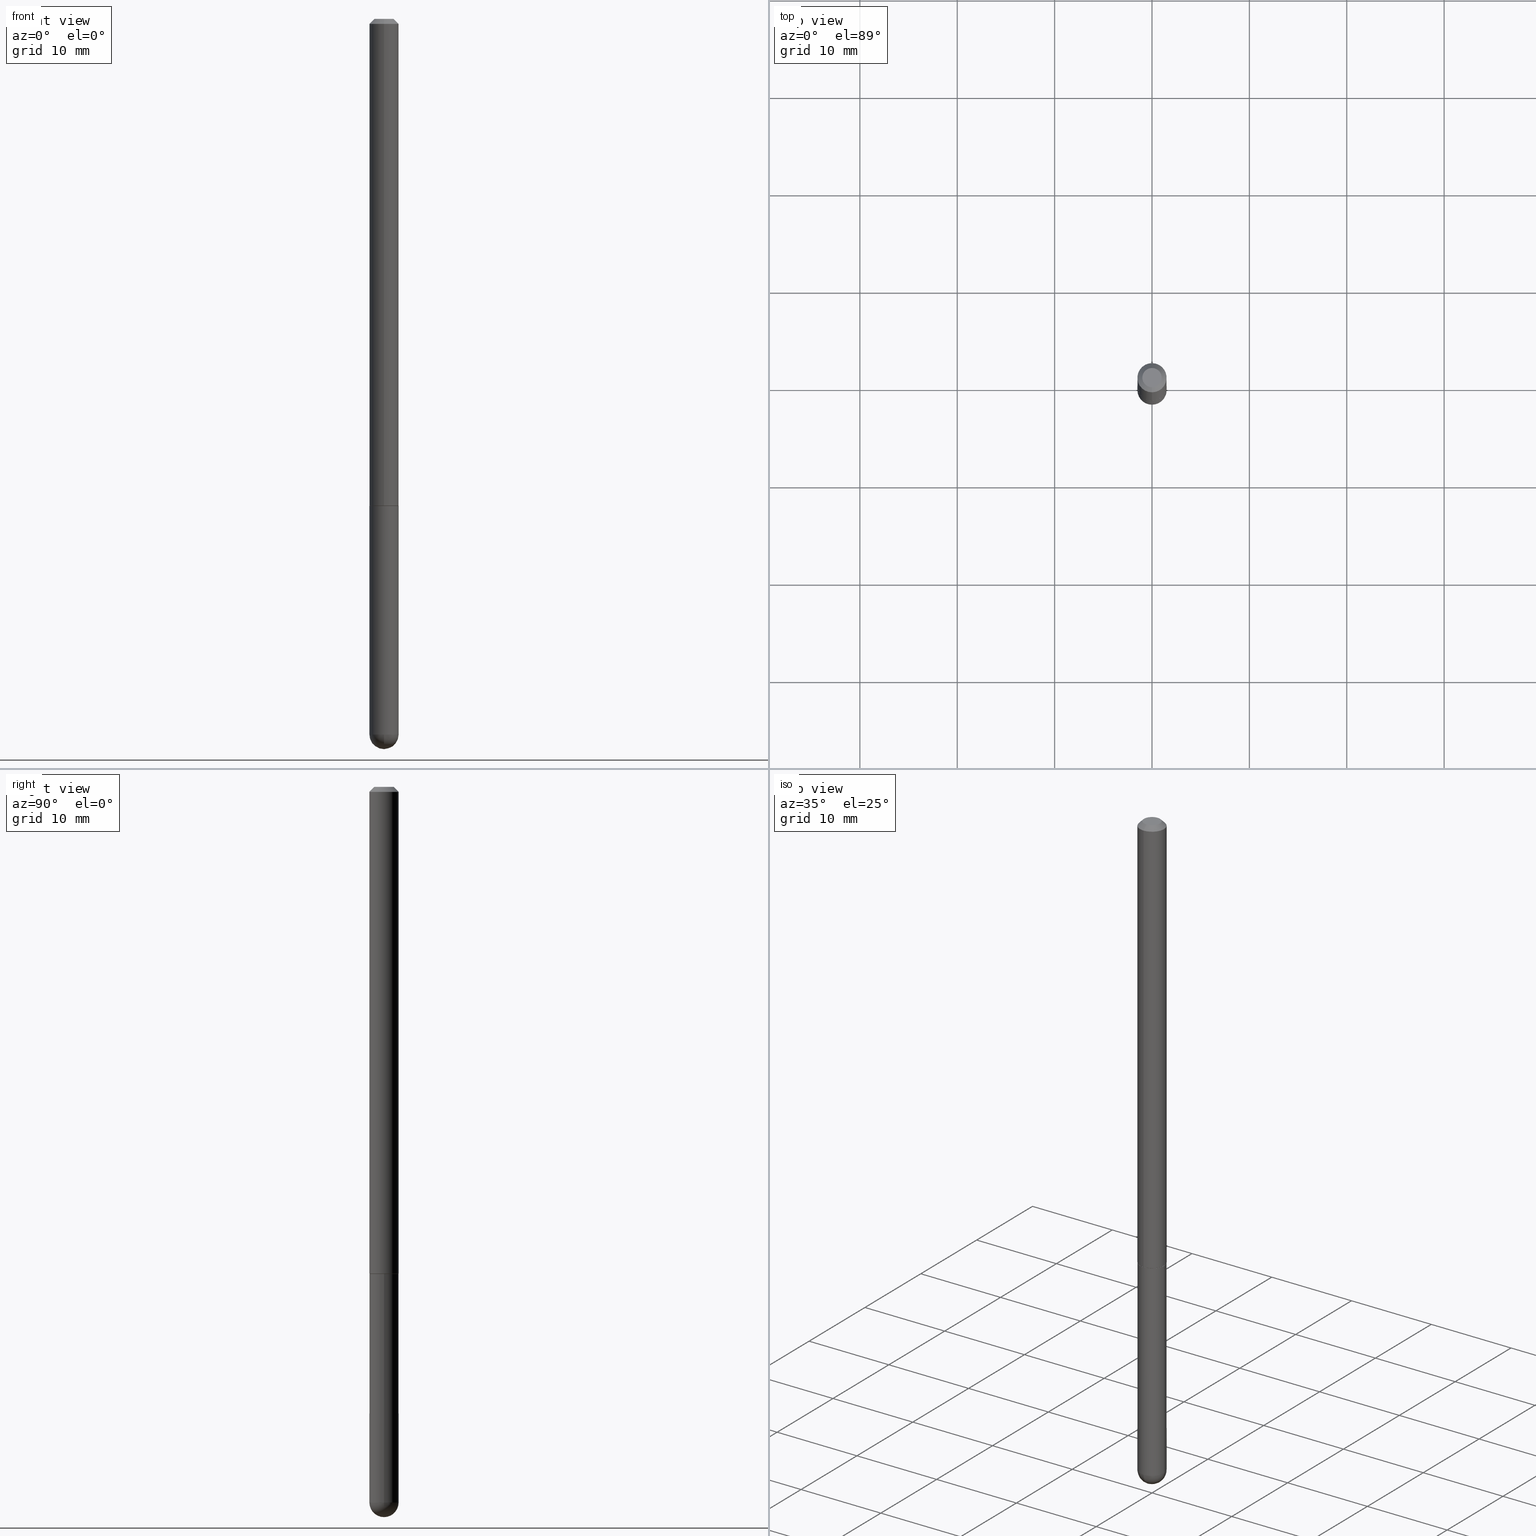
[diagram: canonical four-view strip — front | top / right | iso, engineering-drawing reading convention]
A machine part, canonical four-view strip (front | top / right | iso — engineering-drawing reading convention). The complete STEP part file that produces these views, byte-faithful:
ISO-10303-21;
HEADER;
FILE_DESCRIPTION (( 'STEP AP203' ),
    '1' );
FILE_NAME ('49596.STEP',
    '2024-04-10T12:29:32',
    ( '' ),
    ( '' ),
    'SwSTEP 2.0',
    'SolidWorks 2023',
    '' );
FILE_SCHEMA (( 'CONFIG_CONTROL_DESIGN' ));
ENDSEC;

DATA;
#1 = DIRECTION ( 'NONE',  ( -6.982962677686265922E-15, -1.000000000000000000, 3.481260124123203654E-15 ) ) ;
#2 = VECTOR ( 'NONE', #283, 39.37007874015748143 ) ;
#3 = EDGE_LOOP ( 'NONE', ( #55, #138, #239, #338, #103 ) ) ;
#4 = FACE_OUTER_BOUND ( 'NONE', #371, .T. ) ;
#5 = EDGE_LOOP ( 'NONE', ( #186, #394, #216, #212 ) ) ;
#6 = LINE ( 'NONE', #59, #128 ) ;
#7 = COORDINATED_UNIVERSAL_TIME_OFFSET ( 5, 0, .BEHIND. ) ;
#8 = VERTEX_POINT ( 'NONE', #226 ) ;
#9 = DIRECTION ( 'NONE',  ( -2.452606242276133237E-29, 3.481260124123204048E-15, 1.000000000000000000 ) ) ;
#10 = DATE_AND_TIME ( #112, #35 ) ;
#11 = DIRECTION ( 'NONE',  ( -6.982962677686265922E-15, -1.000000000000000000, 4.626330217890353559E-15 ) ) ;
#12 = MECHANICAL_CONTEXT ( 'NONE', #306, 'mechanical' ) ;
#13 = SECURITY_CLASSIFICATION_LEVEL ( 'unclassified' ) ;
#14 = CC_DESIGN_DATE_AND_TIME_ASSIGNMENT ( #264, #80, ( #233 ) ) ;
#15 = CARTESIAN_POINT ( 'NONE',  ( 6.745455579984352556E-29, -1.057765649241740097E-14, -2.893749999999999822 ) ) ;
#16 = DIRECTION ( 'NONE',  ( -6.982962677686265922E-15, -1.000000000000000000, 3.481260124123204048E-15 ) ) ;
#17 = AXIS2_PLACEMENT_3D ( 'NONE', #353, #259, #106 ) ;
#18 = PERSON_AND_ORGANIZATION ( #307, #377 ) ;
#19 = CARTESIAN_POINT ( 'NONE',  ( 4.813905344975440714E-29, -6.872981015512730918E-15, -1.968499999999999694 ) ) ;
#20 = DIRECTION ( 'NONE',  ( -6.982962677686265922E-15, -1.000000000000000000, 4.706025828879006993E-15 ) ) ;
#21 = CLOSED_SHELL ( 'NONE', ( #334, #257, #403, #333, #380, #187, #411, #374 ) ) ;
#22 = AXIS2_PLACEMENT_3D ( 'NONE', #101, #197, #252 ) ;
#23 = DATE_TIME_ROLE ( 'classification_date' ) ;
#24 = ORIENTED_EDGE ( 'NONE', *, *, #56, .F. ) ;
#25 = LOCAL_TIME ( 8, 29, 32.00000000000000000, #7 ) ;
#26 = EDGE_CURVE ( 'NONE', #89, #182, #248, .T. ) ;
#27 = VERTEX_POINT ( 'NONE', #168 ) ;
#28 = CIRCLE ( 'NONE', #181, 0.05905000000000025506 ) ;
#29 = ORIENTED_EDGE ( 'NONE', *, *, #104, .T. ) ;
#30 = DIRECTION ( 'NONE',  ( -2.445468806185136597E-29, 3.491481338843145583E-15, 1.000000000000000000 ) ) ;
#31 = ORIENTED_EDGE ( 'NONE', *, *, #244, .T. ) ;
#32 = CARTESIAN_POINT ( 'NONE',  ( 0.000000000000000000, 0.000000000000000000, 0.000000000000000000 ) ) ;
#33 = ADVANCED_FACE ( 'NONE', ( #201 ), #275, .T. ) ;
#34 = DIRECTION ( 'NONE',  ( 1.000000000000000000, -6.982962677686270655E-15, 0.000000000000000000 ) ) ;
#35 = LOCAL_TIME ( 8, 29, 32.00000000000000000, #337 ) ;
#36 = CARTESIAN_POINT ( 'NONE',  ( 0.000000000000000000, 0.000000000000000000, 0.000000000000000000 ) ) ;
#37 = DIRECTION ( 'NONE',  ( -2.445468806185136877E-29, 3.491481338843145188E-15, 1.000000000000000000 ) ) ;
#38 = DIRECTION ( 'NONE',  ( 1.000000000000000000, -6.982962677686266711E-15, 4.876176775795935793E-29 ) ) ;
#39 = EDGE_CURVE ( 'NONE', #52, #8, #6, .T. ) ;
#40 = EDGE_LOOP ( 'NONE', ( #229, #309 ) ) ;
#41 = AXIS2_PLACEMENT_3D ( 'NONE', #132, #223, #278 ) ;
#42 = CARTESIAN_POINT ( 'NONE',  ( 0.05905000000000001914, -8.900571516012416899E-15, -2.893749999999999822 ) ) ;
#43 = LINE ( 'NONE', #81, #285 ) ;
#44 = EDGE_CURVE ( 'NONE', #102, #110, #372, .T. ) ;
#45 = APPROVAL_DATE_TIME ( #10, #261 ) ;
#46 = CIRCLE ( 'NONE', #22, 0.05905000000000001914 ) ;
#47 = DIRECTION ( 'NONE',  ( -6.982962677686265922E-15, -1.000000000000000000, 4.626330217890353559E-15 ) ) ;
#48 = CALENDAR_DATE ( 2024, 10, 4 ) ;
#49 = DIRECTION ( 'NONE',  ( 6.982962677686265922E-15, 1.000000000000000000, 0.000000000000000000 ) ) ;
#50 = LOCAL_TIME ( 8, 29, 32.00000000000000000, #396 ) ;
#51 = CARTESIAN_POINT ( 'NONE',  ( 4.825502781678292621E-29, -6.849379294212400691E-15, -1.967499999999999805 ) ) ;
#52 = VERTEX_POINT ( 'NONE', #42 ) ;
#53 = ORIENTED_EDGE ( 'NONE', *, *, #61, .T. ) ;
#54 = CIRCLE ( 'NONE', #94, 0.05905000000000001914 ) ;
#55 = ORIENTED_EDGE ( 'NONE', *, *, #378, .T. ) ;
#56 = EDGE_CURVE ( 'NONE', #177, #182, #314, .T. ) ;
#57 = CIRCLE ( 'NONE', #73, 0.05905000000000020649 ) ;
#58 = FACE_OUTER_BOUND ( 'NONE', #166, .T. ) ;
#59 = CARTESIAN_POINT ( 'NONE',  ( 0.05905000000000001914, -4.123439461173741806E-16, 2.879382386107500921E-30 ) ) ;
#60 = CIRCLE ( 'NONE', #125, 0.05905000000000001914 ) ;
#61 = EDGE_CURVE ( 'NONE', #211, #305, #289, .T. ) ;
#62 = CARTESIAN_POINT ( 'NONE',  ( 4.905212484552284025E-31, -6.962520248246431022E-17, -0.02000000000000006981 ) ) ;
#63 = ORIENTED_EDGE ( 'NONE', *, *, #90, .F. ) ;
#64 = ADVANCED_BREP_SHAPE_REPRESENTATION ( '49596', ( #406, #151, #17 ), #189 ) ;
#65 = CARTESIAN_POINT ( 'NONE',  ( 7.076575357898237682E-29, -1.010347412427735067E-14, -2.893749999999999822 ) ) ;
#66 = AXIS2_PLACEMENT_3D ( 'NONE', #238, #295, #49 ) ;
#67 = VECTOR ( 'NONE', #341, 39.37007874015748143 ) ;
#68 = CARTESIAN_POINT ( 'NONE',  ( 6.745455579984352556E-29, -1.057765649241740097E-14, -2.893749999999999822 ) ) ;
#69 = DIRECTION ( 'NONE',  ( 6.982962677686266711E-15, 1.000000000000000000, 0.000000000000000000 ) ) ;
#70 = CC_DESIGN_PERSON_AND_ORGANIZATION_ASSIGNMENT ( #109, #169, ( #242 ) ) ;
#71 = ORIENTED_EDGE ( 'NONE', *, *, #344, .T. ) ;
#72 = DIRECTION ( 'NONE',  ( 2.452606242276133797E-29, -3.481260124123203654E-15, -1.000000000000000000 ) ) ;
#73 = AXIS2_PLACEMENT_3D ( 'NONE', #366, #362, #47 ) ;
#74 = CARTESIAN_POINT ( 'NONE',  ( 4.123439461173745750E-16, 0.05904999999999994975, -0.02000000000000027450 ) ) ;
#75 = DIRECTION ( 'NONE',  ( -2.452606242276133797E-29, 3.481260124123203654E-15, 1.000000000000000000 ) ) ;
#76 = AXIS2_PLACEMENT_3D ( 'NONE', #347, #325, #290 ) ;
#77 = ORIENTED_EDGE ( 'NONE', *, *, #249, .T. ) ;
#78 = CARTESIAN_POINT ( 'NONE',  ( 4.827955387920569283E-29, -6.852860554336525173E-15, -1.968499999999999694 ) ) ;
#79 = APPROVAL ( #173, 'UNSPECIFIED' ) ;
#80 = DATE_TIME_ROLE ( 'creation_date' ) ;
#81 = CARTESIAN_POINT ( 'NONE',  ( -4.053609834396394049E-16, -0.05805000000000685306, -1.968499999999999472 ) ) ;
#82 = PERSON_AND_ORGANIZATION_ROLE ( 'design_owner' ) ;
#83 = CALENDAR_DATE ( 2024, 10, 4 ) ;
#84 = CARTESIAN_POINT ( 'NONE',  ( -4.195754854662709114E-16, -0.05905000000001047605, -2.893749999999999822 ) ) ;
#85 = DIRECTION ( 'NONE',  ( -6.982962677686265922E-15, -1.000000000000000000, 4.706025828879006993E-15 ) ) ;
#86 = CONICAL_SURFACE ( 'NONE', #41, 0.05804999999999999744, 0.7853981633975165577 ) ;
#87 = APPROVAL_ROLE ( '' ) ;
#88 = EDGE_LOOP ( 'NONE', ( #408, #31, #71, #336, #277 ) ) ;
#89 = VERTEX_POINT ( 'NONE', #147 ) ;
#90 = EDGE_CURVE ( 'NONE', #357, #211, #113, .T. ) ;
#91 = CARTESIAN_POINT ( 'NONE',  ( 4.124700581087863588E-16, 0.05804999999999314181, -1.968500000000000139 ) ) ;
#92 = DIRECTION ( 'NONE',  ( 1.000000000000000000, -6.982962677686270655E-15, 0.000000000000000000 ) ) ;
#93 = ORIENTED_EDGE ( 'NONE', *, *, #104, .F. ) ;
#94 = AXIS2_PLACEMENT_3D ( 'NONE', #188, #30, #157 ) ;
#95 = DIRECTION ( 'NONE',  ( 2.452606242276133797E-29, -3.481260124123203654E-15, -1.000000000000000000 ) ) ;
#96 = CYLINDRICAL_SURFACE ( 'NONE', #122, 0.05905000000000010935 ) ;
#97 = VECTOR ( 'NONE', #100, 39.37007874015748143 ) ;
#98 = FACE_OUTER_BOUND ( 'NONE', #190, .T. ) ;
#99 = CC_DESIGN_DATE_AND_TIME_ASSIGNMENT ( #142, #23, ( #327 ) ) ;
#100 = DIRECTION ( 'NONE',  ( -4.851104656540962697E-15, -0.7071067811865497932, -0.7071067811865452413 ) ) ;
#101 = CARTESIAN_POINT ( 'NONE',  ( 4.905212484552284025E-31, -6.962520248246431022E-17, -0.02000000000000006981 ) ) ;
#102 = VERTEX_POINT ( 'NONE', #266 ) ;
#103 = ORIENTED_EDGE ( 'NONE', *, *, #194, .T. ) ;
#104 = EDGE_CURVE ( 'NONE', #102, #177, #356, .T. ) ;
#105 = ORIENTED_EDGE ( 'NONE', *, *, #26, .T. ) ;
#106 = DIRECTION ( 'NONE',  ( 1.000000000000000000, 0.000000000000000000, 0.000000000000000000 ) ) ;
#107 = DIRECTION ( 'NONE',  ( -2.445468806185136597E-29, 3.491481338843145583E-15, 1.000000000000000000 ) ) ;
#108 = APPLICATION_PROTOCOL_DEFINITION ( 'international standard', 'config_control_design', 1994, #306 ) ;
#109 = PERSON_AND_ORGANIZATION ( #307, #377 ) ;
#110 = VERTEX_POINT ( 'NONE', #143 ) ;
#111 = CARTESIAN_POINT ( 'NONE',  ( 7.076575357898237682E-29, -1.010347412427735067E-14, -2.893749999999999822 ) ) ;
#112 = CALENDAR_DATE ( 2024, 10, 4 ) ;
#113 = CIRCLE ( 'NONE', #272, 0.05804999999999999744 ) ;
#114 = CARTESIAN_POINT ( 'NONE',  ( -6.690358148042937429E-45, 9.496378438338154487E-31, 2.727856609316125176E-16 ) ) ;
#115 = ORIENTED_EDGE ( 'NONE', *, *, #56, .T. ) ;
#116 = ADVANCED_FACE ( 'NONE', ( #392 ), #234, .T. ) ;
#117 = DIRECTION ( 'NONE',  ( -4.937700262164884886E-15, -0.7071067811865933139, 0.7071067811865017205 ) ) ;
#118 = CONICAL_SURFACE ( 'NONE', #312, 0.05905000000000001914, 0.7853981633974480570 ) ;
#119 = ORIENTED_EDGE ( 'NONE', *, *, #174, .F. ) ;
#120 = APPROVAL_ROLE ( '' ) ;
#121 = EDGE_CURVE ( 'NONE', #196, #202, #28, .T. ) ;
#122 = AXIS2_PLACEMENT_3D ( 'NONE', #221, #164, #1 ) ;
#123 = ORIENTED_EDGE ( 'NONE', *, *, #194, .F. ) ;
#124 = APPLICATION_CONTEXT ( 'configuration controlled 3d designs of mechanical parts and assemblies' ) ;
#125 = AXIS2_PLACEMENT_3D ( 'NONE', #317, #345, #315 ) ;
#126 = EDGE_LOOP ( 'NONE', ( #154, #241, #198, #225 ) ) ;
#127 = DIRECTION ( 'NONE',  ( 2.452606242276133237E-29, -3.481260124123204048E-15, -1.000000000000000000 ) ) ;
#128 = VECTOR ( 'NONE', #37, 39.37007874015748143 ) ;
#129 = EDGE_LOOP ( 'NONE', ( #254, #376, #300, #185 ) ) ;
#130 = DIRECTION ( 'NONE',  ( -6.982962677686265922E-15, -1.000000000000000000, 3.481260124123203654E-15 ) ) ;
#131 = CC_DESIGN_APPROVAL ( #261, ( #327 ) ) ;
#132 = CARTESIAN_POINT ( 'NONE',  ( 4.827955387920569283E-29, -6.852860554336525173E-15, -1.968499999999999694 ) ) ;
#133 = SPHERICAL_SURFACE ( 'NONE', #222, 0.05905000000000025506 ) ;
#134 = AXIS2_PLACEMENT_3D ( 'NONE', #111, #331, #335 ) ;
#135 = EDGE_LOOP ( 'NONE', ( #63, #398 ) ) ;
#136 = DIRECTION ( 'NONE',  ( -6.982962677686266711E-15, -1.000000000000000000, 3.481260124123204048E-15 ) ) ;
#137 = CIRCLE ( 'NONE', #76, 0.05804999999999999744 ) ;
#138 = ORIENTED_EDGE ( 'NONE', *, *, #282, .T. ) ;
#139 = CALENDAR_DATE ( 2024, 10, 4 ) ;
#140 = ORIENTED_EDGE ( 'NONE', *, *, #44, .F. ) ;
#141 =( NAMED_UNIT ( * ) SI_UNIT ( $, .STERADIAN. ) SOLID_ANGLE_UNIT ( ) );
#142 = DATE_AND_TIME ( #48, #50 ) ;
#143 = CARTESIAN_POINT ( 'NONE',  ( 4.123439461173745750E-16, 0.05904999999999994975, -0.02000000000000027450 ) ) ;
#144 = CARTESIAN_POINT ( 'NONE',  ( 4.905212484552284025E-31, -6.962520248246431022E-17, -0.02000000000000006981 ) ) ;
#145 = DIRECTION ( 'NONE',  ( 1.000000000000000000, -6.982962677686270655E-15, 0.000000000000000000 ) ) ;
#146 = SHAPE_DEFINITION_REPRESENTATION ( #213, #64 ) ;
#147 = CARTESIAN_POINT ( 'NONE',  ( -4.123439461173271448E-16, -0.05905000000000704824, -1.967499999999999361 ) ) ;
#148 = PERSON_AND_ORGANIZATION ( #307, #377 ) ;
#149 = VECTOR ( 'NONE', #324, 39.37007874015748143 ) ;
#150 = FACE_OUTER_BOUND ( 'NONE', #40, .T. ) ;
#151 = MANIFOLD_SOLID_BREP ( 'Body-Move/Copy2[2]', #21 ) ;
#152 = APPROVAL_STATUS ( 'not_yet_approved' ) ;
#153 = APPROVAL_PERSON_ORGANIZATION ( #332, #310, #120 ) ;
#154 = ORIENTED_EDGE ( 'NONE', *, *, #61, .F. ) ;
#155 = CC_DESIGN_PERSON_AND_ORGANIZATION_ASSIGNMENT ( #390, #82, ( #388 ) ) ;
#156 = ORIENTED_EDGE ( 'NONE', *, *, #274, .T. ) ;
#157 = DIRECTION ( 'NONE',  ( 1.000000000000000000, -6.982962677686270655E-15, 0.000000000000000000 ) ) ;
#158 = ORIENTED_EDGE ( 'NONE', *, *, #319, .T. ) ;
#159 = CARTESIAN_POINT ( 'NONE',  ( 4.123439461174440441E-16, 0.05904999999998979815, -2.893749999999999822 ) ) ;
#160 = AXIS2_PLACEMENT_3D ( 'NONE', #32, #410, #130 ) ;
#161 = EDGE_CURVE ( 'NONE', #89, #305, #57, .T. ) ;
#162 = DIRECTION ( 'NONE',  ( -2.445468806185136597E-29, 3.491481338843145583E-15, 1.000000000000000000 ) ) ;
#163 = CARTESIAN_POINT ( 'NONE',  ( -4.051124067684085231E-16, -0.05905000000000008159, -0.01999999999999986511 ) ) ;
#164 = DIRECTION ( 'NONE',  ( -2.452606242276133797E-29, 3.481260124123203654E-15, 1.000000000000000000 ) ) ;
#165 = CLOSED_SHELL ( 'NONE', ( #33, #116, #291, #214, #219 ) ) ;
#166 = EDGE_LOOP ( 'NONE', ( #286, #53, #179, #119 ) ) ;
#167 =( CONVERSION_BASED_UNIT ( 'INCH', #199 ) LENGTH_UNIT ( ) NAMED_UNIT ( #301 ) );
#168 = CARTESIAN_POINT ( 'NONE',  ( -0.05905000000000001914, -8.068652084428701697E-15, -1.968499999999999694 ) ) ;
#169 = PERSON_AND_ORGANIZATION_ROLE ( 'design_supplier' ) ;
#170 = DIRECTION ( 'NONE',  ( -7.105427357601001070E-15, -1.000000000000000000, 0.000000000000000000 ) ) ;
#171 = VECTOR ( 'NONE', #284, 39.37007874015748143 ) ;
#172 = FACE_OUTER_BOUND ( 'NONE', #88, .T. ) ;
#173 = APPROVAL_STATUS ( 'not_yet_approved' ) ;
#174 = EDGE_CURVE ( 'NONE', #357, #89, #43, .T. ) ;
#175 = DIRECTION ( 'NONE',  ( -1.000000000000000000, 7.105427357601001070E-15, -4.926315508542082329E-29 ) ) ;
#176 = DESIGN_CONTEXT ( 'detailed design', #124, 'design' ) ;
#177 = VERTEX_POINT ( 'NONE', #235 ) ;
#178 = DIRECTION ( 'NONE',  ( -2.452606242276133797E-29, 3.481260124123203654E-15, 1.000000000000000000 ) ) ;
#179 = ORIENTED_EDGE ( 'NONE', *, *, #161, .F. ) ;
#180 = COORDINATED_UNIVERSAL_TIME_OFFSET ( 5, 0, .BEHIND. ) ;
#181 = AXIS2_PLACEMENT_3D ( 'NONE', #15, #175, #170 ) ;
#182 = VERTEX_POINT ( 'NONE', #293 ) ;
#183 = EDGE_CURVE ( 'NONE', #27, #8, #228, .T. ) ;
#184 = CIRCLE ( 'NONE', #288, 0.05905000000000001914 ) ;
#185 = ORIENTED_EDGE ( 'NONE', *, *, #378, .F. ) ;
#186 = ORIENTED_EDGE ( 'NONE', *, *, #161, .T. ) ;
#187 = ADVANCED_FACE ( 'NONE', ( #265 ), #382, .T. ) ;
#188 = CARTESIAN_POINT ( 'NONE',  ( 4.813905344975440714E-29, -6.872981015512730918E-15, -1.968499999999999694 ) ) ;
#189 =( GEOMETRIC_REPRESENTATION_CONTEXT ( 3 ) GLOBAL_UNCERTAINTY_ASSIGNED_CONTEXT ( ( #395 ) ) GLOBAL_UNIT_ASSIGNED_CONTEXT ( ( #167, #287, #141 ) ) REPRESENTATION_CONTEXT ( 'NONE', 'WORKASPACE' ) );
#190 = EDGE_LOOP ( 'NONE', ( #24, #93, #271, #158 ) ) ;
#191 = CYLINDRICAL_SURFACE ( 'NONE', #160, 0.05905000000000010935 ) ;
#192 = DIRECTION ( 'NONE',  ( -1.000000000000000000, 6.982962677686265922E-15, -4.883557194083112340E-29 ) ) ;
#193 = AXIS2_PLACEMENT_3D ( 'NONE', #68, #281, #69 ) ;
#194 = EDGE_CURVE ( 'NONE', #52, #260, #311, .T. ) ;
#195 = DIRECTION ( 'NONE',  ( 6.982962677686265922E-15, 1.000000000000000000, -3.469747663417776213E-15 ) ) ;
#196 = VERTEX_POINT ( 'NONE', #397 ) ;
#197 = DIRECTION ( 'NONE',  ( -2.452606242276133797E-29, 3.481260124123203654E-15, 1.000000000000000000 ) ) ;
#198 = ORIENTED_EDGE ( 'NONE', *, *, #174, .T. ) ;
#199 = LENGTH_MEASURE_WITH_UNIT ( LENGTH_MEASURE( 0.02539999999999999897 ), #387 );
#200 = CIRCLE ( 'NONE', #193, 0.05905000000000025506 ) ;
#201 = FACE_OUTER_BOUND ( 'NONE', #3, .T. ) ;
#202 = VERTEX_POINT ( 'NONE', #84 ) ;
#203 = PLANE ( 'NONE',  #308 ) ;
#204 = APPROVAL_DATE_TIME ( #231, #310 ) ;
#205 = DIRECTION ( 'NONE',  ( -2.452606242276133797E-29, 3.481260124123203654E-15, 1.000000000000000000 ) ) ;
#206 = APPLICATION_PROTOCOL_DEFINITION ( 'international standard', 'config_control_design', 1994, #124 ) ;
#207 = EDGE_CURVE ( 'NONE', #305, #89, #267, .T. ) ;
#208 = CYLINDRICAL_SURFACE ( 'NONE', #253, 0.05905000000000001914 ) ;
#209 = PERSON_AND_ORGANIZATION ( #307, #377 ) ;
#210 = CARTESIAN_POINT ( 'NONE',  ( 4.827955387920569283E-29, -6.852860554336525173E-15, -1.968499999999999694 ) ) ;
#211 = VERTEX_POINT ( 'NONE', #299 ) ;
#212 = ORIENTED_EDGE ( 'NONE', *, *, #26, .F. ) ;
#213 = PRODUCT_DEFINITION_SHAPE ( 'NONE', 'NONE',  #233 ) ;
#214 = ADVANCED_FACE ( 'NONE', ( #150 ), #232, .F. ) ;
#215 = AXIS2_PLACEMENT_3D ( 'NONE', #114, #360, #262 ) ;
#216 = ORIENTED_EDGE ( 'NONE', *, *, #404, .F. ) ;
#217 = FACE_OUTER_BOUND ( 'NONE', #243, .T. ) ;
#218 = ORIENTED_EDGE ( 'NONE', *, *, #274, .F. ) ;
#219 = ADVANCED_FACE ( 'NONE', ( #172 ), #208, .T. ) ;
#220 = PLANE ( 'NONE',  #224 ) ;
#221 = CARTESIAN_POINT ( 'NONE',  ( 0.000000000000000000, 0.000000000000000000, 0.000000000000000000 ) ) ;
#222 = AXIS2_PLACEMENT_3D ( 'NONE', #250, #192, #279 ) ;
#223 = DIRECTION ( 'NONE',  ( -2.452606242276133797E-29, 3.481260124123203654E-15, 1.000000000000000000 ) ) ;
#224 = AXIS2_PLACEMENT_3D ( 'NONE', #407, #127, #379 ) ;
#225 = ORIENTED_EDGE ( 'NONE', *, *, #207, .F. ) ;
#226 = CARTESIAN_POINT ( 'NONE',  ( 0.05905000000000001914, -7.285324961630105839E-15, -1.968499999999999694 ) ) ;
#227 = DIRECTION ( 'NONE',  ( 6.982962677686265922E-15, 1.000000000000000000, -3.469747663417776213E-15 ) ) ;
#228 = CIRCLE ( 'NONE', #402, 0.05905000000000001914 ) ;
#229 = ORIENTED_EDGE ( 'NONE', *, *, #369, .T. ) ;
#230 = AXIS2_PLACEMENT_3D ( 'NONE', #62, #95, #195 ) ;
#231 = DATE_AND_TIME ( #83, #297 ) ;
#232 = PLANE ( 'NONE',  #340 ) ;
#233 = PRODUCT_DEFINITION ( 'UNKNOWN', '', #242, #176 ) ;
#234 = SPHERICAL_SURFACE ( 'NONE', #66, 0.05905000000000025506 ) ;
#235 = CARTESIAN_POINT ( 'NONE',  ( -3.365074267906922549E-16, -0.03904999999999968219, 4.087288687786225301E-16 ) ) ;
#236 = CONICAL_SURFACE ( 'NONE', #230, 0.05905000000000001914, 0.7853981633974480570 ) ;
#237 = COORDINATED_UNIVERSAL_TIME_OFFSET ( 5, 0, .BEHIND. ) ;
#238 = CARTESIAN_POINT ( 'NONE',  ( 6.745455579984352556E-29, -1.057765649241740097E-14, -2.893749999999999822 ) ) ;
#239 = ORIENTED_EDGE ( 'NONE', *, *, #369, .F. ) ;
#240 = APPROVAL_DATE_TIME ( #292, #79 ) ;
#241 = ORIENTED_EDGE ( 'NONE', *, *, #400, .T. ) ;
#242 = PRODUCT_DEFINITION_FORMATION_WITH_SPECIFIED_SOURCE ( 'ANY', '', #388, .NOT_KNOWN. ) ;
#243 = EDGE_LOOP ( 'NONE', ( #389, #352, #105, #386 ) ) ;
#244 = EDGE_CURVE ( 'NONE', #258, #202, #373, .T. ) ;
#245 = CARTESIAN_POINT ( 'NONE',  ( 0.000000000000000000, 0.000000000000000000, 0.000000000000000000 ) ) ;
#246 = AXIS2_PLACEMENT_3D ( 'NONE', #65, #162, #34 ) ;
#247 = CARTESIAN_POINT ( 'NONE',  ( 7.076575357898237682E-29, -1.010347412427735067E-14, -2.893749999999999822 ) ) ;
#248 = LINE ( 'NONE', #322, #2 ) ;
#249 = EDGE_CURVE ( 'NONE', #196, #260, #200, .T. ) ;
#250 = CARTESIAN_POINT ( 'NONE',  ( 6.745455579984352556E-29, -1.057765649241740097E-14, -2.893749999999999822 ) ) ;
#251 = CARTESIAN_POINT ( 'NONE',  ( -0.05905000000000001914, -8.068652084428701697E-15, -2.893749999999999822 ) ) ;
#252 = DIRECTION ( 'NONE',  ( -6.982962677686265922E-15, -1.000000000000000000, 3.469747663417776213E-15 ) ) ;
#253 = AXIS2_PLACEMENT_3D ( 'NONE', #36, #316, #38 ) ;
#254 = ORIENTED_EDGE ( 'NONE', *, *, #249, .F. ) ;
#255 = CARTESIAN_POINT ( 'NONE',  ( -6.690358148042937429E-45, 9.496378438338154487E-31, 2.727856609316125176E-16 ) ) ;
#256 = AXIS2_PLACEMENT_3D ( 'NONE', #144, #75, #263 ) ;
#257 = ADVANCED_FACE ( 'NONE', ( #313 ), #96, .T. ) ;
#258 = VERTEX_POINT ( 'NONE', #251 ) ;
#259 = DIRECTION ( 'NONE',  ( 0.000000000000000000, 0.000000000000000000, 1.000000000000000000 ) ) ;
#260 = VERTEX_POINT ( 'NONE', #159 ) ;
#261 = APPROVAL ( #152, 'UNSPECIFIED' ) ;
#262 = DIRECTION ( 'NONE',  ( -6.982962677686266711E-15, -1.000000000000000000, 3.481260124123204048E-15 ) ) ;
#263 = DIRECTION ( 'NONE',  ( -6.982962677686265922E-15, -1.000000000000000000, 3.469747663417776213E-15 ) ) ;
#264 = DATE_AND_TIME ( #401, #269 ) ;
#265 = FACE_OUTER_BOUND ( 'NONE', #126, .T. ) ;
#266 = CARTESIAN_POINT ( 'NONE',  ( 3.425143193405105373E-16, 0.03904999999999968219, 1.368424530846025051E-16 ) ) ;
#267 = CIRCLE ( 'NONE', #409, 0.05905000000000020649 ) ;
#268 = CARTESIAN_POINT ( 'NONE',  ( 4.123439461174222518E-16, 0.05904999999999314270, -1.968500000000000139 ) ) ;
#269 = LOCAL_TIME ( 8, 29, 32.00000000000000000, #237 ) ;
#270 = PERSON_AND_ORGANIZATION_ROLE ( 'creator' ) ;
#271 = ORIENTED_EDGE ( 'NONE', *, *, #44, .T. ) ;
#272 = AXIS2_PLACEMENT_3D ( 'NONE', #210, #393, #20 ) ;
#273 = PRODUCT_RELATED_PRODUCT_CATEGORY ( 'detail', '', ( #388 ) ) ;
#274 = EDGE_CURVE ( 'NONE', #177, #102, #294, .T. ) ;
#275 = CYLINDRICAL_SURFACE ( 'NONE', #363, 0.05905000000000001914 ) ;
#276 = FACE_OUTER_BOUND ( 'NONE', #370, .T. ) ;
#277 = ORIENTED_EDGE ( 'NONE', *, *, #183, .F. ) ;
#278 = DIRECTION ( 'NONE',  ( -6.982962677686265922E-15, -1.000000000000000000, 4.706025828879006993E-15 ) ) ;
#279 = DIRECTION ( 'NONE',  ( 6.982962677686265922E-15, 1.000000000000000000, 0.000000000000000000 ) ) ;
#280 = APPROVAL_PERSON_ORGANIZATION ( #18, #261, #87 ) ;
#281 = DIRECTION ( 'NONE',  ( 1.000000000000000000, -6.982962677686265922E-15, 4.883557194083112340E-29 ) ) ;
#282 = EDGE_CURVE ( 'NONE', #258, #27, #321, .T. ) ;
#283 = DIRECTION ( 'NONE',  ( -2.452606242276134078E-29, 3.481260124123204048E-15, 1.000000000000000000 ) ) ;
#284 = DIRECTION ( 'NONE',  ( -2.445468806185136877E-29, 3.491481338843145188E-15, 1.000000000000000000 ) ) ;
#285 = VECTOR ( 'NONE', #117, 39.37007874015748143 ) ;
#286 = ORIENTED_EDGE ( 'NONE', *, *, #90, .T. ) ;
#287 =( NAMED_UNIT ( * ) PLANE_ANGLE_UNIT ( ) SI_UNIT ( $, .RADIAN. ) );
#288 = AXIS2_PLACEMENT_3D ( 'NONE', #247, #375, #92 ) ;
#289 = LINE ( 'NONE', #91, #303 ) ;
#290 = DIRECTION ( 'NONE',  ( -6.982962677686265922E-15, -1.000000000000000000, 4.706025828879006993E-15 ) ) ;
#291 = ADVANCED_FACE ( 'NONE', ( #4 ), #133, .T. ) ;
#292 = DATE_AND_TIME ( #139, #25 ) ;
#293 = CARTESIAN_POINT ( 'NONE',  ( -4.051124067684085231E-16, -0.05905000000000008159, -0.01999999999999986511 ) ) ;
#294 = CIRCLE ( 'NONE', #348, 0.03904999999999968219 ) ;
#295 = DIRECTION ( 'NONE',  ( -1.000000000000000000, 6.982962677686265922E-15, -4.883557194083112340E-29 ) ) ;
#296 = APPROVAL_ROLE ( '' ) ;
#297 = LOCAL_TIME ( 8, 29, 32.00000000000000000, #180 ) ;
#298 = PERSON_AND_ORGANIZATION ( #307, #377 ) ;
#299 = CARTESIAN_POINT ( 'NONE',  ( 4.160227717875875531E-16, 0.05804999999999314181, -1.968500000000000139 ) ) ;
#300 = ORIENTED_EDGE ( 'NONE', *, *, #244, .F. ) ;
#301 = DIMENSIONAL_EXPONENTS ( 1.000000000000000000, 0.000000000000000000, 0.000000000000000000, 0.000000000000000000, 0.000000000000000000, 0.000000000000000000, 0.000000000000000000 ) ;
#302 = CARTESIAN_POINT ( 'NONE',  ( 4.827955387920569283E-29, -6.852860554336525173E-15, -1.968499999999999694 ) ) ;
#303 = VECTOR ( 'NONE', #342, 39.37007874015748143 ) ;
#304 = PERSON_AND_ORGANIZATION_ROLE ( 'creator' ) ;
#305 = VERTEX_POINT ( 'NONE', #385 ) ;
#306 = APPLICATION_CONTEXT ( 'configuration controlled 3d designs of mechanical parts and assemblies' ) ;
#307 = PERSON ( 'UNSPECIFIED', 'UNSPECIFIED', 'UNSPECIFIED', ('UNSPECIFIED'), ('UNSPECIFIED'), ('UNSPECIFIED') ) ;
#308 = AXIS2_PLACEMENT_3D ( 'NONE', #78, #9, #16 ) ;
#309 = ORIENTED_EDGE ( 'NONE', *, *, #183, .T. ) ;
#310 = APPROVAL ( #365, 'UNSPECIFIED' ) ;
#311 = CIRCLE ( 'NONE', #134, 0.05905000000000001914 ) ;
#312 = AXIS2_PLACEMENT_3D ( 'NONE', #358, #72, #227 ) ;
#313 = FACE_OUTER_BOUND ( 'NONE', #5, .T. ) ;
#314 = LINE ( 'NONE', #163, #97 ) ;
#315 = DIRECTION ( 'NONE',  ( 1.000000000000000000, -6.982962677686270655E-15, 0.000000000000000000 ) ) ;
#316 = DIRECTION ( 'NONE',  ( -2.445468806185136597E-29, 3.491481338843145583E-15, 1.000000000000000000 ) ) ;
#317 = CARTESIAN_POINT ( 'NONE',  ( 7.076575357898237682E-29, -1.010347412427735067E-14, -2.893749999999999822 ) ) ;
#318 = APPROVAL_PERSON_ORGANIZATION ( #330, #79, #296 ) ;
#319 = EDGE_CURVE ( 'NONE', #110, #182, #46, .T. ) ;
#320 = DIRECTION ( 'NONE',  ( 1.000000000000000000, -6.982962677686266711E-15, 4.876176775795935793E-29 ) ) ;
#321 = LINE ( 'NONE', #349, #171 ) ;
#322 = CARTESIAN_POINT ( 'NONE',  ( -4.123439461173747722E-16, -0.05905000000000010935, 2.055684103294755676E-16 ) ) ;
#323 = AXIS2_PLACEMENT_3D ( 'NONE', #302, #205, #85 ) ;
#324 = DIRECTION ( 'NONE',  ( 4.937700262164546464E-15, 0.7071067811865449082, -0.7071067811865501263 ) ) ;
#325 = DIRECTION ( 'NONE',  ( -2.452606242276133797E-29, 3.481260124123203654E-15, 1.000000000000000000 ) ) ;
#326 = EDGE_CURVE ( 'NONE', #305, #110, #383, .T. ) ;
#327 = SECURITY_CLASSIFICATION ( '', '', #13 ) ;
#328 = DIRECTION ( 'NONE',  ( 2.438088387897960049E-29, -3.491481338843145188E-15, -1.000000000000000000 ) ) ;
#329 = DIRECTION ( 'NONE',  ( -1.000000000000000000, 6.982962677686265922E-15, -4.876176775795935793E-29 ) ) ;
#330 = PERSON_AND_ORGANIZATION ( #307, #377 ) ;
#331 = DIRECTION ( 'NONE',  ( -2.445468806185136597E-29, 3.491481338843145583E-15, 1.000000000000000000 ) ) ;
#332 = PERSON_AND_ORGANIZATION ( #307, #377 ) ;
#333 = ADVANCED_FACE ( 'NONE', ( #98 ), #236, .T. ) ;
#334 = ADVANCED_FACE ( 'NONE', ( #58 ), #86, .T. ) ;
#335 = DIRECTION ( 'NONE',  ( 1.000000000000000000, -6.982962677686270655E-15, 0.000000000000000000 ) ) ;
#336 = ORIENTED_EDGE ( 'NONE', *, *, #39, .T. ) ;
#337 = COORDINATED_UNIVERSAL_TIME_OFFSET ( 5, 0, .BEHIND. ) ;
#338 = ORIENTED_EDGE ( 'NONE', *, *, #39, .F. ) ;
#339 = CC_DESIGN_PERSON_AND_ORGANIZATION_ASSIGNMENT ( #298, #270, ( #233 ) ) ;
#340 = AXIS2_PLACEMENT_3D ( 'NONE', #268, #328, #329 ) ;
#341 = DIRECTION ( 'NONE',  ( -2.452606242276134078E-29, 3.481260124123204048E-15, 1.000000000000000000 ) ) ;
#342 = DIRECTION ( 'NONE',  ( 5.024295867788404755E-15, 0.7071067811865981989, 0.7071067811864968355 ) ) ;
#343 = CIRCLE ( 'NONE', #256, 0.05905000000000001914 ) ;
#344 = EDGE_CURVE ( 'NONE', #202, #52, #60, .T. ) ;
#345 = DIRECTION ( 'NONE',  ( -2.445468806185136597E-29, 3.491481338843145583E-15, 1.000000000000000000 ) ) ;
#346 = ORIENTED_EDGE ( 'NONE', *, *, #121, .F. ) ;
#347 = CARTESIAN_POINT ( 'NONE',  ( 4.827955387920569283E-29, -6.852860554336525173E-15, -1.968499999999999694 ) ) ;
#348 = AXIS2_PLACEMENT_3D ( 'NONE', #255, #381, #136 ) ;
#349 = CARTESIAN_POINT ( 'NONE',  ( -0.05905000000000001914, 4.195754854663392958E-16, -2.904631170795522943E-30 ) ) ;
#350 = CC_DESIGN_PERSON_AND_ORGANIZATION_ASSIGNMENT ( #148, #368, ( #327 ) ) ;
#351 = CARTESIAN_POINT ( 'NONE',  ( -4.053609834396394049E-16, -0.05805000000000685306, -1.968499999999999472 ) ) ;
#352 = ORIENTED_EDGE ( 'NONE', *, *, #207, .T. ) ;
#353 = CARTESIAN_POINT ( 'NONE',  ( 0.000000000000000000, 0.000000000000000000, 0.000000000000000000 ) ) ;
#354 = EDGE_LOOP ( 'NONE', ( #218, #115, #405, #140 ) ) ;
#355 = FACE_OUTER_BOUND ( 'NONE', #354, .T. ) ;
#356 = CIRCLE ( 'NONE', #215, 0.03904999999999968219 ) ;
#357 = VERTEX_POINT ( 'NONE', #351 ) ;
#358 = CARTESIAN_POINT ( 'NONE',  ( 4.905212484552284025E-31, -6.962520248246431022E-17, -0.02000000000000006981 ) ) ;
#359 = CC_DESIGN_SECURITY_CLASSIFICATION ( #327, ( #242 ) ) ;
#360 = DIRECTION ( 'NONE',  ( -2.452606242276133797E-29, 3.481260124123203654E-15, 1.000000000000000000 ) ) ;
#361 = FACE_OUTER_BOUND ( 'NONE', #135, .T. ) ;
#362 = DIRECTION ( 'NONE',  ( -2.452606242276133797E-29, 3.481260124123203654E-15, 1.000000000000000000 ) ) ;
#363 = AXIS2_PLACEMENT_3D ( 'NONE', #245, #384, #320 ) ;
#364 = CC_DESIGN_PERSON_AND_ORGANIZATION_ASSIGNMENT ( #209, #304, ( #242 ) ) ;
#365 = APPROVAL_STATUS ( 'not_yet_approved' ) ;
#366 = CARTESIAN_POINT ( 'NONE',  ( 4.825502781678292621E-29, -6.849379294212400691E-15, -1.967499999999999805 ) ) ;
#367 = ORIENTED_EDGE ( 'NONE', *, *, #344, .F. ) ;
#368 = PERSON_AND_ORGANIZATION_ROLE ( 'classification_officer' ) ;
#369 = EDGE_CURVE ( 'NONE', #8, #27, #54, .T. ) ;
#370 = EDGE_LOOP ( 'NONE', ( #29, #156 ) ) ;
#371 = EDGE_LOOP ( 'NONE', ( #346, #77, #123, #367 ) ) ;
#372 = LINE ( 'NONE', #74, #149 ) ;
#373 = CIRCLE ( 'NONE', #246, 0.05905000000000001914 ) ;
#374 = ADVANCED_FACE ( 'NONE', ( #276 ), #220, .F. ) ;
#375 = DIRECTION ( 'NONE',  ( -2.445468806185136597E-29, 3.491481338843145583E-15, 1.000000000000000000 ) ) ;
#376 = ORIENTED_EDGE ( 'NONE', *, *, #121, .T. ) ;
#377 = ORGANIZATION ( 'UNSPECIFIED', 'UNSPECIFIED', '' ) ;
#378 = EDGE_CURVE ( 'NONE', #260, #258, #184, .T. ) ;
#379 = DIRECTION ( 'NONE',  ( 6.982962677686265922E-15, 1.000000000000000000, -3.481260124123204048E-15 ) ) ;
#380 = ADVANCED_FACE ( 'NONE', ( #217 ), #191, .T. ) ;
#381 = DIRECTION ( 'NONE',  ( -2.452606242276133797E-29, 3.481260124123203654E-15, 1.000000000000000000 ) ) ;
#382 = CONICAL_SURFACE ( 'NONE', #323, 0.05804999999999999744, 0.7853981633975165577 ) ;
#383 = LINE ( 'NONE', #412, #67 ) ;
#384 = DIRECTION ( 'NONE',  ( -2.445468806185136597E-29, 3.491481338843145583E-15, 1.000000000000000000 ) ) ;
#385 = CARTESIAN_POINT ( 'NONE',  ( 4.195754854663646379E-16, 0.05904999999999335780, -1.967500000000000027 ) ) ;
#386 = ORIENTED_EDGE ( 'NONE', *, *, #319, .F. ) ;
#387 =( LENGTH_UNIT ( ) NAMED_UNIT ( * ) SI_UNIT ( $, .METRE. ) );
#388 = PRODUCT ( '49596', '49596', '', ( #12 ) ) ;
#389 = ORIENTED_EDGE ( 'NONE', *, *, #326, .F. ) ;
#390 = PERSON_AND_ORGANIZATION ( #307, #377 ) ;
#391 = CC_DESIGN_APPROVAL ( #310, ( #242 ) ) ;
#392 = FACE_OUTER_BOUND ( 'NONE', #129, .T. ) ;
#393 = DIRECTION ( 'NONE',  ( -2.452606242276133797E-29, 3.481260124123203654E-15, 1.000000000000000000 ) ) ;
#394 = ORIENTED_EDGE ( 'NONE', *, *, #326, .T. ) ;
#395 = UNCERTAINTY_MEASURE_WITH_UNIT (LENGTH_MEASURE( 1.000000000000000082E-05 ), #167, 'distance_accuracy_value', 'NONE');
#396 = COORDINATED_UNIVERSAL_TIME_OFFSET ( 5, 0, .BEHIND. ) ;
#397 = CARTESIAN_POINT ( 'NONE',  ( 6.892385391458386628E-29, -1.078021269580160693E-14, -2.952799999999999869 ) ) ;
#398 = ORIENTED_EDGE ( 'NONE', *, *, #400, .F. ) ;
#399 = CC_DESIGN_APPROVAL ( #79, ( #233 ) ) ;
#400 = EDGE_CURVE ( 'NONE', #211, #357, #137, .T. ) ;
#401 = CALENDAR_DATE ( 2024, 10, 4 ) ;
#402 = AXIS2_PLACEMENT_3D ( 'NONE', #19, #107, #145 ) ;
#403 = ADVANCED_FACE ( 'NONE', ( #355 ), #118, .T. ) ;
#404 = EDGE_CURVE ( 'NONE', #182, #110, #343, .T. ) ;
#405 = ORIENTED_EDGE ( 'NONE', *, *, #404, .T. ) ;
#406 = MANIFOLD_SOLID_BREP ( 'Body-Move/Copy2[1]', #165 ) ;
#407 = CARTESIAN_POINT ( 'NONE',  ( 2.726846925636464995E-16, 0.03904999999999968219, 4.496226187962950251E-19 ) ) ;
#408 = ORIENTED_EDGE ( 'NONE', *, *, #282, .F. ) ;
#409 = AXIS2_PLACEMENT_3D ( 'NONE', #51, #178, #11 ) ;
#410 = DIRECTION ( 'NONE',  ( -2.452606242276133797E-29, 3.481260124123203654E-15, 1.000000000000000000 ) ) ;
#411 = ADVANCED_FACE ( 'NONE', ( #361 ), #203, .F. ) ;
#412 = CARTESIAN_POINT ( 'NONE',  ( 4.195754854663398874E-16, 0.05905000000000010935, -2.055684103294755676E-16 ) ) ;
ENDSEC;
END-ISO-10303-21;
